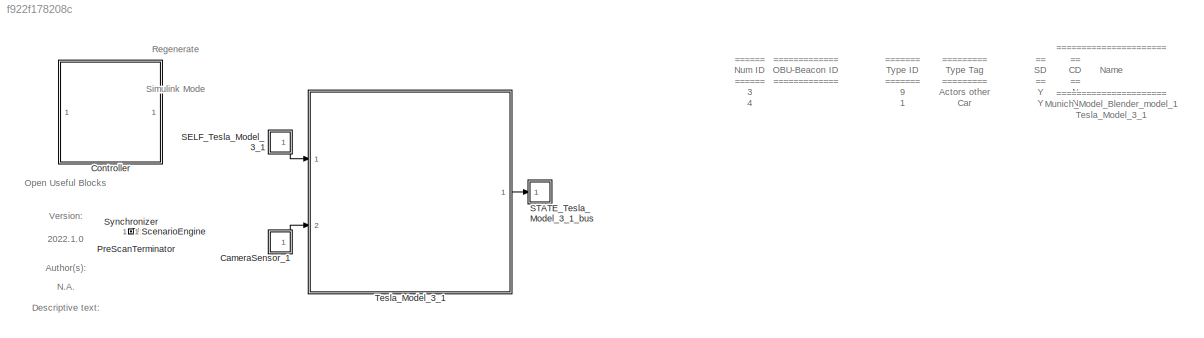
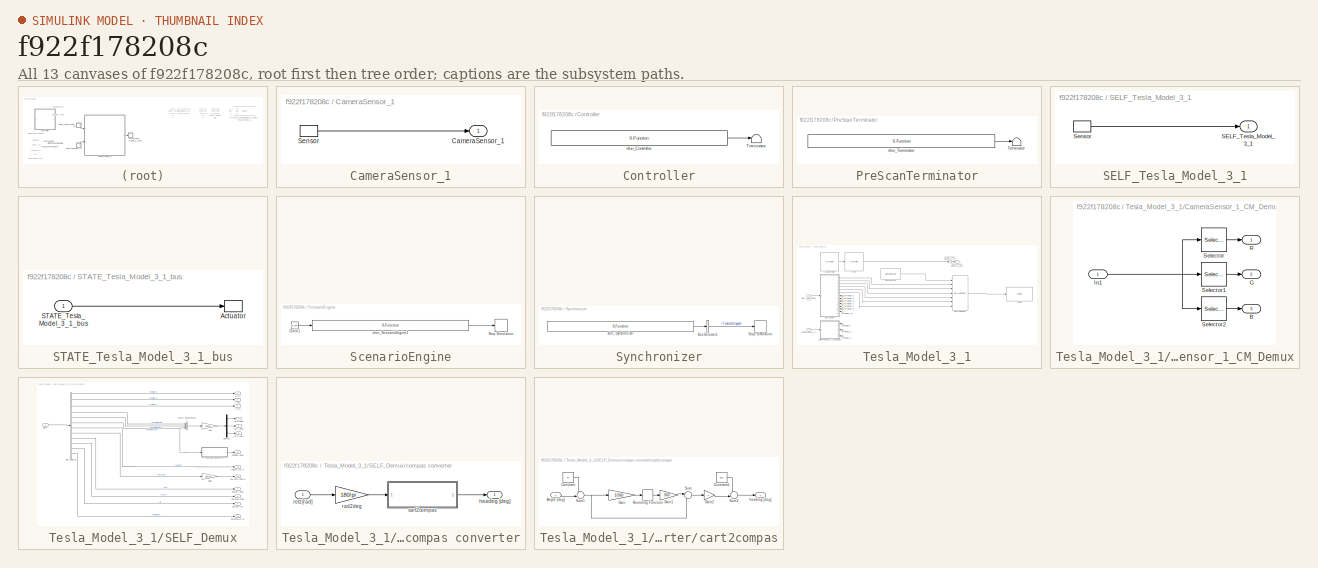
[diagram: thumbnail index - all 13 canvases of the model, root first then tree order]
MODEL slx_f922f178208c
KIND model
CONFIG AbsTol = auto
CONFIG EnableMultiTasking = off
CONFIG FixedStep = 1/20
CONFIG InitFcn = mbxruntime.callbacks.InitFcn(bdroot);
CONFIG MaxStep = auto
CONFIG MinStep = auto
CONFIG PostLoadFcn = mbxruntime.callbacks.PostLoadFcn(bdroot);
CONFIG PreLoadFcn = mbxruntime.callbacks.PreLoadFcn(bdroot);
CONFIG RelTol = 1e-3
CONFIG SampleTimeConstraint = Unconstrained
CONFIG SolverName = ode5
CONFIG StartFcn = mbxruntime.callbacks.StartFcn(bdroot);
CONFIG StartTime = 0.0
CONFIG StopFcn = mbxruntime.callbacks.StopFcn(bdroot);
CONFIG StopTime = inf
WORKSPACE source: external: MAT-File  (data not in archive)
BLOCK [SubSystem] CameraSensor_1
  OpenFcn = open_system([gcb '/Sensor'],'mask')
  Ports = [0, 1]
  Priority = 30
  RequestExecContextInheritance = off
  Tag = sensor/Camera/CameraSensor
BLOCK [Outport] CameraSensor_1/CameraSensor_1
  OutDataTypeStr = uint8
  SampleTime = 1/20
  Tag = outport/Camera/CameraSensor
BLOCK [S-Function] CameraSensor_1/Sensor
  EnableBusSupport = off
  FunctionName = sfun_Camera
  Parameters = mbxruntime.parameters.convert(sensorID), mbxruntime.parameters.convert(dataWidth), mbxruntime.parameters.convert(dataHeight), mbxruntime.parameters.convert(channelsPerImage), mbxruntime.parameters.convert(timestep)
  Ports = [0, 1]
  SFcnIsStateOwnerBlock = off
  SFunctionDeploymentMode = off
BLOCK [SubSystem] Controller
  Description = 8A3CD2955739A82C886C20AE3E253D78460D53180EE2C1B14CC08DF75A70BE77
  LoadFcn = load PreScanControllerData
  ModelCloseFcn = assignin('base',['model_closed_' bdroot],true);
  Ports = []
  Priority = -1
  RequestExecContextInheritance = off
BLOCK [Terminator] Controller/Terminator
BLOCK [S-Function] Controller/sfun_Controller
  EnableBusSupport = off
  FunctionName = sfun_Controller
  Parameters = SParameter1, SParameter2, SParameter3, SParameter4, SParameter5, SParameter6, SParameter7, SParameter8, SParameter9, SParameter10, SampleTime
  Ports = [0, 1]
  SFcnIsStateOwnerBlock = off
  SFunctionDeploymentMode = off
BLOCK [SubSystem] PreScanTerminator
  LoadFcn = load PrescanTerminatorData
  Ports = []
  Priority = 999
  RequestExecContextInheritance = off
  Tag = PreScanTerminator
BLOCK [Terminator] PreScanTerminator/Terminator
BLOCK [S-Function] PreScanTerminator/sfun_Terminator
  EnableBusSupport = off
  FunctionName = sfun_Terminator
  Parameters = SampleTime
  Ports = [0, 1]
  SFcnIsStateOwnerBlock = off
  SFunctionDeploymentMode = off
BLOCK [SubSystem] SELF_Tesla_Model_3_1
  LoadFcn = load('PreScanSelfSensorData.mat')
  OpenFcn = open_system([gcb '/Sensor'],'mask')
  Ports = [0, 1]
  Priority = 30
  RequestExecContextInheritance = off
  Tag = sensor/SelfPort
BLOCK [Outport] SELF_Tesla_Model_3_1/SELF_Tesla_Model_3_1
  OutDataTypeStr = Bus: PRESCAN_SELFSENSORDATA
  PortDimensions = 1
  SampleTime = 1/20
  Tag = outport/SelfPort
BLOCK [S-Function] SELF_Tesla_Model_3_1/Sensor
  EnableBusSupport = off
  FunctionName = sfun_SelfSensor
  Parameters = mbxruntime.parameters.convert(UniqueID), mbxruntime.parameters.convert(TimeStep)
  Ports = [0, 1]
  SFcnIsStateOwnerBlock = off
  SFunctionDeploymentMode = off
BLOCK [SubSystem] STATE_Tesla_Model_3_1_bus
  LoadFcn = load('PreScanStateActuatorData.mat')
  OpenFcn = open_system([gcb '/Actuator'],'mask')
  Ports = [1]
  Priority = 0
  RequestExecContextInheritance = off
  Tag = actuator/StatePort
BLOCK [S-Function] STATE_Tesla_Model_3_1_bus/Actuator
  EnableBusSupport = off
  FunctionName = sfun_StateActuator
  Parameters = mbxruntime.parameters.convert(UniqueID), mbxruntime.parameters.convert(TimeStep)
  Ports = [1]
  SFcnIsStateOwnerBlock = off
  SFunctionDeploymentMode = off
BLOCK [Inport] STATE_Tesla_Model_3_1_bus/STATE_Tesla_Model_3_1_bus
  BusOutputAsStruct = on
  OutDataTypeStr = Bus: PRESCAN_STATEACTUATORDATA
  PortDimensions = 1
  SampleTime = 1/20
  Tag = inport/StatePort
BLOCK [SubSystem] ScenarioEngine
  DeleteFcn = PreScanBlockDeleteFcn;
  LoadFcn = load PrescanSynchronizeData
  Ports = []
  Priority = 10
  RequestExecContextInheritance = off
  Tag = PreScanOpenScenarioBlock
BLOCK [Clock] ScenarioEngine/Clock1
BLOCK [Stop] ScenarioEngine/Stop Simulation
BLOCK [S-Function] ScenarioEngine/sfun_ScenarioEngine1
  EnableBusSupport = off
  FunctionName = sfun_ScenarioEngine
  Parameters = TimeStep
  Ports = [1, 1]
  SFcnIsStateOwnerBlock = off
  SFunctionDeploymentMode = off
BLOCK [SubSystem] Synchronizer
  DeleteFcn = PreScanBlockDeleteFcn;
  LoadFcn = load PrescanSynchronizeData
  Ports = []
  Priority = 20
  RequestExecContextInheritance = off
  Tag = PreScanSynchronizer
BLOCK [BusSelector] Synchronizer/Bus Selector1
  OutputSignals = FederateStopped
  Ports = [1, 1]
BLOCK [Stop] Synchronizer/Stop Simulation
BLOCK [S-Function] Synchronizer/sfun_Synchronizer
  EnableBusSupport = off
  FunctionName = sfun_Synchronizer
  Parameters = SampleTime
  Ports = [0, 1]
  SFcnIsStateOwnerBlock = off
  SFunctionDeploymentMode = off
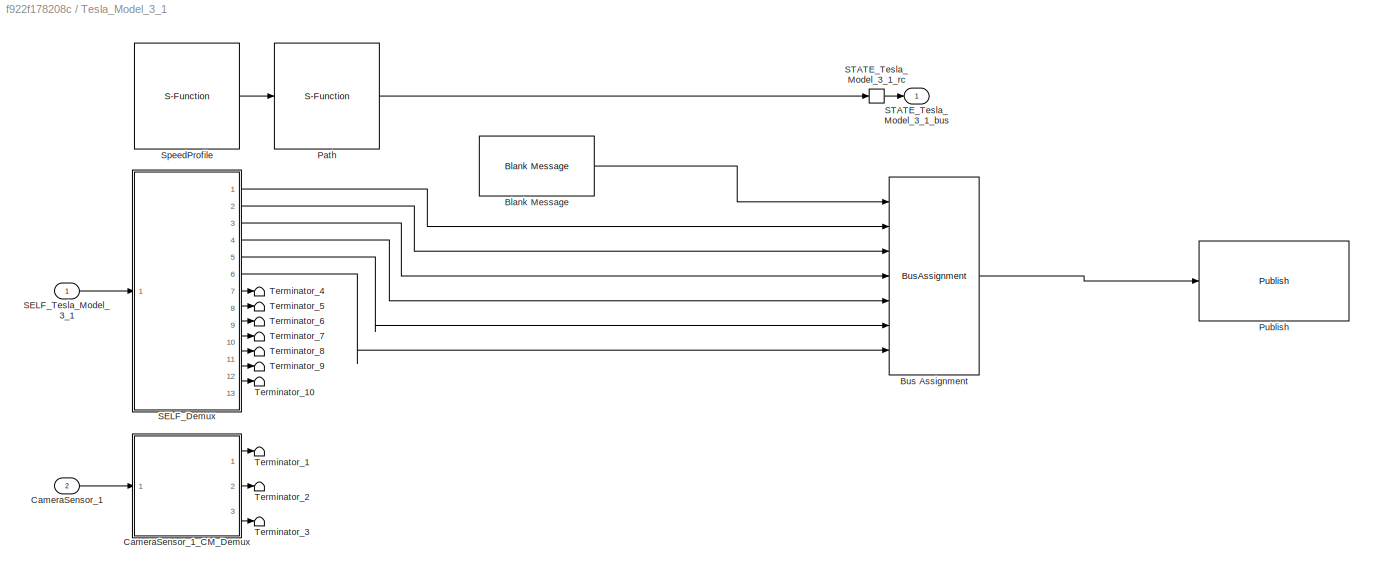
BLOCK [SubSystem] Tesla_Model_3_1
  InitFcn = UniqueId = '16';
  Ports = [2, 1]
  RequestExecContextInheritance = off
  Tag = WorldObjectSubSystem
BLOCK [Reference] Tesla_Model_3_1/Blank Message  REF=ros2lib/Blank Message  (lib defined in slx_3c1549211f48)
  Ports = [0, 1]
  SourceBlock = ros2lib/Blank Message
  SourceProductBaseCode = RR
  SourceType = ROS2 Blank Message
BLOCK [BusAssignment] Tesla_Model_3_1/Bus Assignment
  AssignedSignals = position.x,position.y,position.z,orientation.x,orientation.y,orientation.z
  Ports = [7, 1]
BLOCK [Inport] Tesla_Model_3_1/CameraSensor_1
  BusOutputAsStruct = on
  OutDataTypeStr = uint8
  Port = 2
  SampleTime = 1/20
  Tag = inport/Camera/CameraSensor
BLOCK [SubSystem] Tesla_Model_3_1/CameraSensor_1_CM_Demux
  Ports = [1, 3]
  RequestExecContextInheritance = off
  Tag = demux/Camera/Color
BLOCK [Outport] Tesla_Model_3_1/CameraSensor_1_CM_Demux/B
  Port = 3
  VectorParamsAs1DForOutWhenUnconnected = off
BLOCK [Outport] Tesla_Model_3_1/CameraSensor_1_CM_Demux/G
  Port = 2
  VectorParamsAs1DForOutWhenUnconnected = off
BLOCK [Inport] Tesla_Model_3_1/CameraSensor_1_CM_Demux/In1
BLOCK [Outport] Tesla_Model_3_1/CameraSensor_1_CM_Demux/R
  VectorParamsAs1DForOutWhenUnconnected = off
BLOCK [Selector] Tesla_Model_3_1/CameraSensor_1_CM_Demux/Selector
  IndexOptions = Index vector (dialog),Index vector (dialog)
  Indices = -1,1:hres
  InputPortWidth = 3
  NumberOfDimensions = 2
  OutputSizes = 1,1
  Ports = [1, 1]
BLOCK [Selector] Tesla_Model_3_1/CameraSensor_1_CM_Demux/Selector1
  IndexOptions = Index vector (dialog),Index vector (dialog)
  Indices = -1,hres+1:hres*2
  InputPortWidth = 3
  NumberOfDimensions = 2
  OutputSizes = 1,1
  Ports = [1, 1]
BLOCK [Selector] Tesla_Model_3_1/CameraSensor_1_CM_Demux/Selector2
  IndexOptions = Index vector (dialog),Index vector (dialog)
  Indices = -1,hres*2+1:hres*3
  InputPortWidth = 3
  NumberOfDimensions = 2
  OutputSizes = 1,1
  Ports = [1, 1]
BLOCK [S-Function] Tesla_Model_3_1/Path
  EnableBusSupport = off
  FunctionName = sfun_Path
  LoadFcn = load('PrescanMotionData.mat')
  Parameters = mbxruntime.parameters.convert(uniqueID), pathUniqueID, mbxruntime.parameters.convert(timestep)
  Ports = [1, 1]
  SFcnIsStateOwnerBlock = off
  SFunctionDeploymentMode = off
BLOCK [Reference] Tesla_Model_3_1/Publish  REF=ros2lib/Publish  (lib defined in slx_3c1549211f48)
  Ports = [1]
  SourceBlock = ros2lib/Publish
  SourceProductBaseCode = RR
  SourceType = ROS2 Publish
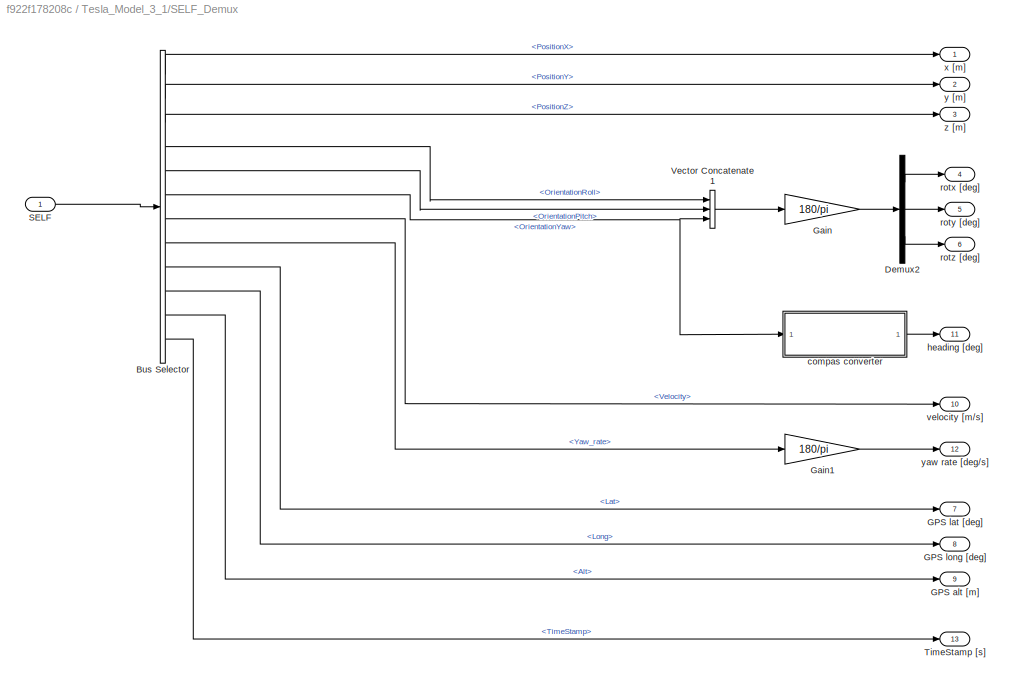
BLOCK [SubSystem] Tesla_Model_3_1/SELF_Demux
  DeleteFcn = PreScanBlockDeleteFcn;
  Ports = [1, 13]
  RequestExecContextInheritance = off
  Tag = demux/SelfPort
BLOCK [BusSelector] Tesla_Model_3_1/SELF_Demux/Bus Selector
  OutputSignals = PositionX,PositionY,PositionZ,OrientationRoll,OrientationPitch,OrientationYaw,Velocity,Yaw_rate,Lat,Long,Alt,TimeStamp
  Ports = [1, 12]
BLOCK [Demux] Tesla_Model_3_1/SELF_Demux/Demux2
  Outputs = 3
  Ports = [1, 3]
BLOCK [Outport] Tesla_Model_3_1/SELF_Demux/GPS alt [m]
  Port = 9
  VectorParamsAs1DForOutWhenUnconnected = off
BLOCK [Outport] Tesla_Model_3_1/SELF_Demux/GPS lat [deg]
  Port = 7
  VectorParamsAs1DForOutWhenUnconnected = off
BLOCK [Outport] Tesla_Model_3_1/SELF_Demux/GPS long [deg]
  Port = 8
  VectorParamsAs1DForOutWhenUnconnected = off
BLOCK [Gain] Tesla_Model_3_1/SELF_Demux/Gain
  Gain = 180/pi
BLOCK [Gain] Tesla_Model_3_1/SELF_Demux/Gain1
  Gain = 180/pi
BLOCK [Inport] Tesla_Model_3_1/SELF_Demux/SELF
  OutDataTypeStr = Bus: PRESCAN_SELFSENSORDATA
BLOCK [Outport] Tesla_Model_3_1/SELF_Demux/TimeStamp [s]
  Port = 13
  VectorParamsAs1DForOutWhenUnconnected = off
BLOCK [Concatenate] Tesla_Model_3_1/SELF_Demux/Vector Concatenate1
  NumInputs = 3
  Ports = [3, 1]
BLOCK [SubSystem] Tesla_Model_3_1/SELF_Demux/compas converter
  Ports = [1, 1]
  RequestExecContextInheritance = off
BLOCK [SubSystem] Tesla_Model_3_1/SELF_Demux/compas converter/cart2compas
  Ports = [1, 1]
  RequestExecContextInheritance = off
BLOCK [Inport] Tesla_Model_3_1/SELF_Demux/compas converter/cart2compas/Angle [deg]
BLOCK [Constant] Tesla_Model_3_1/SELF_Demux/compas converter/cart2compas/Constant
  Value = 90
BLOCK [Constant] Tesla_Model_3_1/SELF_Demux/compas converter/cart2compas/Constant1
  Value = 360
BLOCK [Gain] Tesla_Model_3_1/SELF_Demux/compas converter/cart2compas/Gain
  Gain = 1/360
BLOCK [Gain] Tesla_Model_3_1/SELF_Demux/compas converter/cart2compas/Gain1
  Gain = 360
BLOCK [Gain] Tesla_Model_3_1/SELF_Demux/compas converter/cart2compas/Gain2
  Gain = -1
BLOCK [Rounding] Tesla_Model_3_1/SELF_Demux/compas converter/cart2compas/Rounding Function
BLOCK [Sum] Tesla_Model_3_1/SELF_Demux/compas converter/cart2compas/Sum
  Inputs = |-+
  Ports = [2, 1]
BLOCK [Sum] Tesla_Model_3_1/SELF_Demux/compas converter/cart2compas/Sum1
  Inputs = -+|
  Ports = [2, 1]
BLOCK [Sum] Tesla_Model_3_1/SELF_Demux/compas converter/cart2compas/Sum2
  Inputs = ++|
  Ports = [2, 1]
BLOCK [Outport] Tesla_Model_3_1/SELF_Demux/compas converter/cart2compas/heading [deg]
  VectorParamsAs1DForOutWhenUnconnected = off
BLOCK [Outport] Tesla_Model_3_1/SELF_Demux/compas converter/heading [deg]
  VectorParamsAs1DForOutWhenUnconnected = off
BLOCK [Gain] Tesla_Model_3_1/SELF_Demux/compas converter/rad2deg
  Gain = 180/pi
BLOCK [Inport] Tesla_Model_3_1/SELF_Demux/compas converter/rotz [rad]
BLOCK [Outport] Tesla_Model_3_1/SELF_Demux/heading [deg]
  Port = 11
  VectorParamsAs1DForOutWhenUnconnected = off
BLOCK [Outport] Tesla_Model_3_1/SELF_Demux/rotx [deg]
  Port = 4
  VectorParamsAs1DForOutWhenUnconnected = off
BLOCK [Outport] Tesla_Model_3_1/SELF_Demux/roty [deg]
  Port = 5
  VectorParamsAs1DForOutWhenUnconnected = off
BLOCK [Outport] Tesla_Model_3_1/SELF_Demux/rotz [deg]
  Port = 6
  VectorParamsAs1DForOutWhenUnconnected = off
BLOCK [Outport] Tesla_Model_3_1/SELF_Demux/velocity [m//s]
  Port = 10
  VectorParamsAs1DForOutWhenUnconnected = off
BLOCK [Outport] Tesla_Model_3_1/SELF_Demux/x [m]
  VectorParamsAs1DForOutWhenUnconnected = off
BLOCK [Outport] Tesla_Model_3_1/SELF_Demux/y [m]
  Port = 2
  VectorParamsAs1DForOutWhenUnconnected = off
BLOCK [Outport] Tesla_Model_3_1/SELF_Demux/yaw rate [deg//s]
  Port = 12
  VectorParamsAs1DForOutWhenUnconnected = off
BLOCK [Outport] Tesla_Model_3_1/SELF_Demux/z [m]
  Port = 3
  VectorParamsAs1DForOutWhenUnconnected = off
BLOCK [Inport] Tesla_Model_3_1/SELF_Tesla_Model_3_1
  BusOutputAsStruct = on
  OutDataTypeStr = Bus: PRESCAN_SELFSENSORDATA
  PortDimensions = 1
  SampleTime = 1/20
  Tag = inport/SelfPort
BLOCK [Outport] Tesla_Model_3_1/STATE_Tesla_Model_3_1_bus
  OutDataTypeStr = Bus: PRESCAN_STATEACTUATORDATA
  PortDimensions = 1
  SampleTime = 1/20
  Tag = outport/StatePort
BLOCK [RateTransition] Tesla_Model_3_1/STATE_Tesla_Model_3_1_rc
  OutPortSampleTimeOpt = Inherit
  Tag = mux_rc/StatePort
BLOCK [S-Function] Tesla_Model_3_1/SpeedProfile
  EnableBusSupport = off
  FunctionName = sfun_SpeedProfile
  LoadFcn = load('PrescanMotionData.mat')
  Parameters = speedProfileUniqueID, mbxruntime.parameters.convert(timestep)
  Ports = [0, 1]
  SFcnIsStateOwnerBlock = off
  SFunctionDeploymentMode = off
BLOCK [Terminator] Tesla_Model_3_1/Terminator_1
BLOCK [Terminator] Tesla_Model_3_1/Terminator_10
BLOCK [Terminator] Tesla_Model_3_1/Terminator_2
BLOCK [Terminator] Tesla_Model_3_1/Terminator_3
BLOCK [Terminator] Tesla_Model_3_1/Terminator_4
BLOCK [Terminator] Tesla_Model_3_1/Terminator_5
BLOCK [Terminator] Tesla_Model_3_1/Terminator_6
BLOCK [Terminator] Tesla_Model_3_1/Terminator_7
BLOCK [Terminator] Tesla_Model_3_1/Terminator_8
BLOCK [Terminator] Tesla_Model_3_1/Terminator_9
ANNOTATION (root): 2022.1.0
ANNOTATION (root): == CD == N N
ANNOTATION (root): == SD == Y Y
ANNOTATION (root): ====== Num ID ====== 3 4
ANNOTATION (root): ======= Type ID ======= 9 1
ANNOTATION (root): ========= Type Tag ========= Actors other Car
ANNOTATION (root): ============= OBU-Beacon ID =============
ANNOTATION (root): ====================== Name ====================== Munich_Model_Blender_model_1 Tesla_Model_3_1
ANNOTATION (root): Author(s):
ANNOTATION (root): Descriptive text:
ANNOTATION (root): N.A.
ANNOTATION (root): Open Useful Blocks
ANNOTATION (root): Regenerate
ANNOTATION (root): Simulink Mode
ANNOTATION (root): Version:
LINE CameraSensor_1/Sensor:1 -> CameraSensor_1/CameraSensor_1:1
LINE CameraSensor_1:1 -> Tesla_Model_3_1:2
LINE Controller/sfun_Controller:1 -> Controller/Terminator:1
LINE PreScanTerminator/sfun_Terminator:1 -> PreScanTerminator/Terminator:1
LINE SELF_Tesla_Model_3_1/Sensor:1 -> SELF_Tesla_Model_3_1/SELF_Tesla_Model_3_1:1
LINE SELF_Tesla_Model_3_1:1 -> Tesla_Model_3_1:1
LINE STATE_Tesla_Model_3_1_bus/STATE_Tesla_Model_3_1_bus:1 -> STATE_Tesla_Model_3_1_bus/Actuator:1
LINE ScenarioEngine/Clock1:1 -> ScenarioEngine/sfun_ScenarioEngine1:1
LINE ScenarioEngine/sfun_ScenarioEngine1:1 -> ScenarioEngine/Stop Simulation:1
LINE Synchronizer/Bus Selector1:1 -> Synchronizer/Stop Simulation:1
LINE Synchronizer/sfun_Synchronizer:1 -> Synchronizer/Bus Selector1:1
LINE Tesla_Model_3_1/Blank Message:1 -> Tesla_Model_3_1/Bus Assignment:1
LINE Tesla_Model_3_1/Bus Assignment:1 -> Tesla_Model_3_1/Publish:1
LINE Tesla_Model_3_1/CameraSensor_1:1 -> Tesla_Model_3_1/CameraSensor_1_CM_Demux:1
NET Tesla_Model_3_1/CameraSensor_1_CM_Demux/In1:1 -> Tesla_Model_3_1/CameraSensor_1_CM_Demux/Selector1:1, Tesla_Model_3_1/CameraSensor_1_CM_Demux/Selector2:1, Tesla_Model_3_1/CameraSensor_1_CM_Demux/Selector:1
LINE Tesla_Model_3_1/CameraSensor_1_CM_Demux/Selector1:1 -> Tesla_Model_3_1/CameraSensor_1_CM_Demux/G:1
LINE Tesla_Model_3_1/CameraSensor_1_CM_Demux/Selector2:1 -> Tesla_Model_3_1/CameraSensor_1_CM_Demux/B:1
LINE Tesla_Model_3_1/CameraSensor_1_CM_Demux/Selector:1 -> Tesla_Model_3_1/CameraSensor_1_CM_Demux/R:1
LINE Tesla_Model_3_1/CameraSensor_1_CM_Demux:1 -> Tesla_Model_3_1/Terminator_1:1
LINE Tesla_Model_3_1/CameraSensor_1_CM_Demux:2 -> Tesla_Model_3_1/Terminator_2:1
LINE Tesla_Model_3_1/CameraSensor_1_CM_Demux:3 -> Tesla_Model_3_1/Terminator_3:1
LINE Tesla_Model_3_1/Path:1 -> Tesla_Model_3_1/STATE_Tesla_Model_3_1_rc:1
LINE Tesla_Model_3_1/SELF_Demux/Bus Selector:1 -> Tesla_Model_3_1/SELF_Demux/x [m]:1
LINE Tesla_Model_3_1/SELF_Demux/Bus Selector:10 -> Tesla_Model_3_1/SELF_Demux/GPS long [deg]:1
LINE Tesla_Model_3_1/SELF_Demux/Bus Selector:11 -> Tesla_Model_3_1/SELF_Demux/GPS alt [m]:1
LINE Tesla_Model_3_1/SELF_Demux/Bus Selector:12 -> Tesla_Model_3_1/SELF_Demux/TimeStamp [s]:1
LINE Tesla_Model_3_1/SELF_Demux/Bus Selector:2 -> Tesla_Model_3_1/SELF_Demux/y [m]:1
LINE Tesla_Model_3_1/SELF_Demux/Bus Selector:3 -> Tesla_Model_3_1/SELF_Demux/z [m]:1
LINE Tesla_Model_3_1/SELF_Demux/Bus Selector:4 -> Tesla_Model_3_1/SELF_Demux/Vector Concatenate1:1
LINE Tesla_Model_3_1/SELF_Demux/Bus Selector:5 -> Tesla_Model_3_1/SELF_Demux/Vector Concatenate1:2
NET Tesla_Model_3_1/SELF_Demux/Bus Selector:6 -> Tesla_Model_3_1/SELF_Demux/Vector Concatenate1:3, Tesla_Model_3_1/SELF_Demux/compas converter:1
LINE Tesla_Model_3_1/SELF_Demux/Bus Selector:7 -> Tesla_Model_3_1/SELF_Demux/velocity [m//s]:1
LINE Tesla_Model_3_1/SELF_Demux/Bus Selector:8 -> Tesla_Model_3_1/SELF_Demux/Gain1:1
LINE Tesla_Model_3_1/SELF_Demux/Bus Selector:9 -> Tesla_Model_3_1/SELF_Demux/GPS lat [deg]:1
LINE Tesla_Model_3_1/SELF_Demux/Demux2:1 -> Tesla_Model_3_1/SELF_Demux/rotx [deg]:1
LINE Tesla_Model_3_1/SELF_Demux/Demux2:2 -> Tesla_Model_3_1/SELF_Demux/roty [deg]:1
LINE Tesla_Model_3_1/SELF_Demux/Demux2:3 -> Tesla_Model_3_1/SELF_Demux/rotz [deg]:1
LINE Tesla_Model_3_1/SELF_Demux/Gain1:1 -> Tesla_Model_3_1/SELF_Demux/yaw rate [deg//s]:1
LINE Tesla_Model_3_1/SELF_Demux/Gain:1 -> Tesla_Model_3_1/SELF_Demux/Demux2:1
LINE Tesla_Model_3_1/SELF_Demux/SELF:1 -> Tesla_Model_3_1/SELF_Demux/Bus Selector:1
LINE Tesla_Model_3_1/SELF_Demux/Vector Concatenate1:1 -> Tesla_Model_3_1/SELF_Demux/Gain:1
LINE Tesla_Model_3_1/SELF_Demux/compas converter/cart2compas/Angle [deg]:1 -> Tesla_Model_3_1/SELF_Demux/compas converter/cart2compas/Sum1:2
LINE Tesla_Model_3_1/SELF_Demux/compas converter/cart2compas/Constant1:1 -> Tesla_Model_3_1/SELF_Demux/compas converter/cart2compas/Sum2:1
LINE Tesla_Model_3_1/SELF_Demux/compas converter/cart2compas/Constant:1 -> Tesla_Model_3_1/SELF_Demux/compas converter/cart2compas/Sum1:1
LINE Tesla_Model_3_1/SELF_Demux/compas converter/cart2compas/Gain1:1 -> Tesla_Model_3_1/SELF_Demux/compas converter/cart2compas/Sum:1
LINE Tesla_Model_3_1/SELF_Demux/compas converter/cart2compas/Gain2:1 -> Tesla_Model_3_1/SELF_Demux/compas converter/cart2compas/Sum2:2
LINE Tesla_Model_3_1/SELF_Demux/compas converter/cart2compas/Gain:1 -> Tesla_Model_3_1/SELF_Demux/compas converter/cart2compas/Rounding Function:1
LINE Tesla_Model_3_1/SELF_Demux/compas converter/cart2compas/Rounding Function:1 -> Tesla_Model_3_1/SELF_Demux/compas converter/cart2compas/Gain1:1
NET Tesla_Model_3_1/SELF_Demux/compas converter/cart2compas/Sum1:1 -> Tesla_Model_3_1/SELF_Demux/compas converter/cart2compas/Gain:1, Tesla_Model_3_1/SELF_Demux/compas converter/cart2compas/Sum:2
LINE Tesla_Model_3_1/SELF_Demux/compas converter/cart2compas/Sum2:1 -> Tesla_Model_3_1/SELF_Demux/compas converter/cart2compas/heading [deg]:1
LINE Tesla_Model_3_1/SELF_Demux/compas converter/cart2compas/Sum:1 -> Tesla_Model_3_1/SELF_Demux/compas converter/cart2compas/Gain2:1
LINE Tesla_Model_3_1/SELF_Demux/compas converter/cart2compas:1 -> Tesla_Model_3_1/SELF_Demux/compas converter/heading [deg]:1
LINE Tesla_Model_3_1/SELF_Demux/compas converter/rad2deg:1 -> Tesla_Model_3_1/SELF_Demux/compas converter/cart2compas:1
LINE Tesla_Model_3_1/SELF_Demux/compas converter/rotz [rad]:1 -> Tesla_Model_3_1/SELF_Demux/compas converter/rad2deg:1
LINE Tesla_Model_3_1/SELF_Demux/compas converter:1 -> Tesla_Model_3_1/SELF_Demux/heading [deg]:1
LINE Tesla_Model_3_1/SELF_Demux:1 -> Tesla_Model_3_1/Bus Assignment:2
LINE Tesla_Model_3_1/SELF_Demux:10 -> Tesla_Model_3_1/Terminator_7:1
LINE Tesla_Model_3_1/SELF_Demux:11 -> Tesla_Model_3_1/Terminator_8:1
LINE Tesla_Model_3_1/SELF_Demux:12 -> Tesla_Model_3_1/Terminator_9:1
LINE Tesla_Model_3_1/SELF_Demux:13 -> Tesla_Model_3_1/Terminator_10:1
LINE Tesla_Model_3_1/SELF_Demux:2 -> Tesla_Model_3_1/Bus Assignment:3
LINE Tesla_Model_3_1/SELF_Demux:3 -> Tesla_Model_3_1/Bus Assignment:4
LINE Tesla_Model_3_1/SELF_Demux:4 -> Tesla_Model_3_1/Bus Assignment:5
LINE Tesla_Model_3_1/SELF_Demux:5 -> Tesla_Model_3_1/Bus Assignment:6
LINE Tesla_Model_3_1/SELF_Demux:6 -> Tesla_Model_3_1/Bus Assignment:7
LINE Tesla_Model_3_1/SELF_Demux:7 -> Tesla_Model_3_1/Terminator_4:1
LINE Tesla_Model_3_1/SELF_Demux:8 -> Tesla_Model_3_1/Terminator_5:1
LINE Tesla_Model_3_1/SELF_Demux:9 -> Tesla_Model_3_1/Terminator_6:1
LINE Tesla_Model_3_1/SELF_Tesla_Model_3_1:1 -> Tesla_Model_3_1/SELF_Demux:1
LINE Tesla_Model_3_1/STATE_Tesla_Model_3_1_rc:1 -> Tesla_Model_3_1/STATE_Tesla_Model_3_1_bus:1
LINE Tesla_Model_3_1/SpeedProfile:1 -> Tesla_Model_3_1/Path:1
LINE Tesla_Model_3_1:1 -> STATE_Tesla_Model_3_1_bus:1
note: NET lines group one-source signal fan-out (src -> all destinations, sorted); 1:1 wires keep LINE
